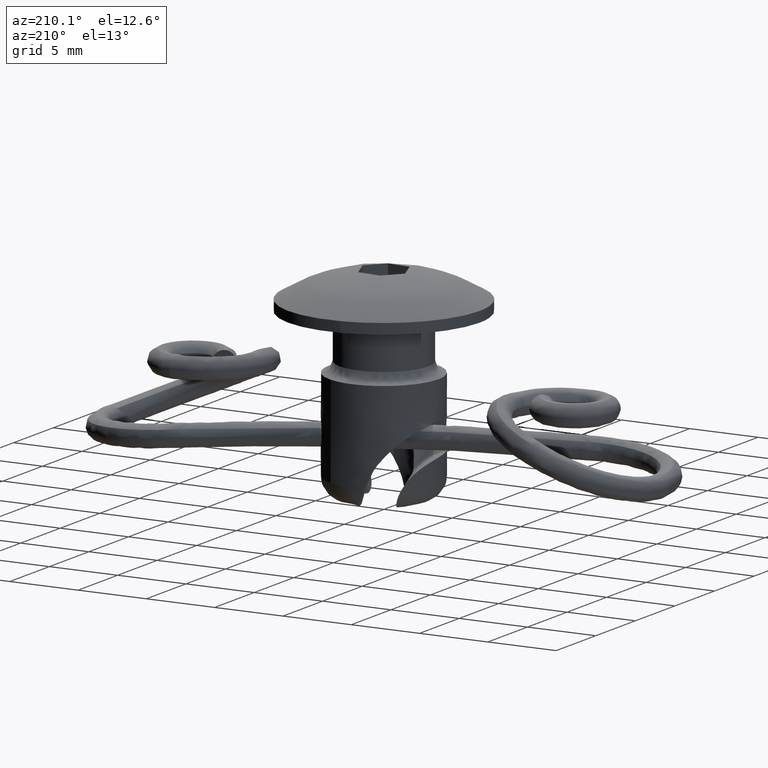
[diagram: clean part render]
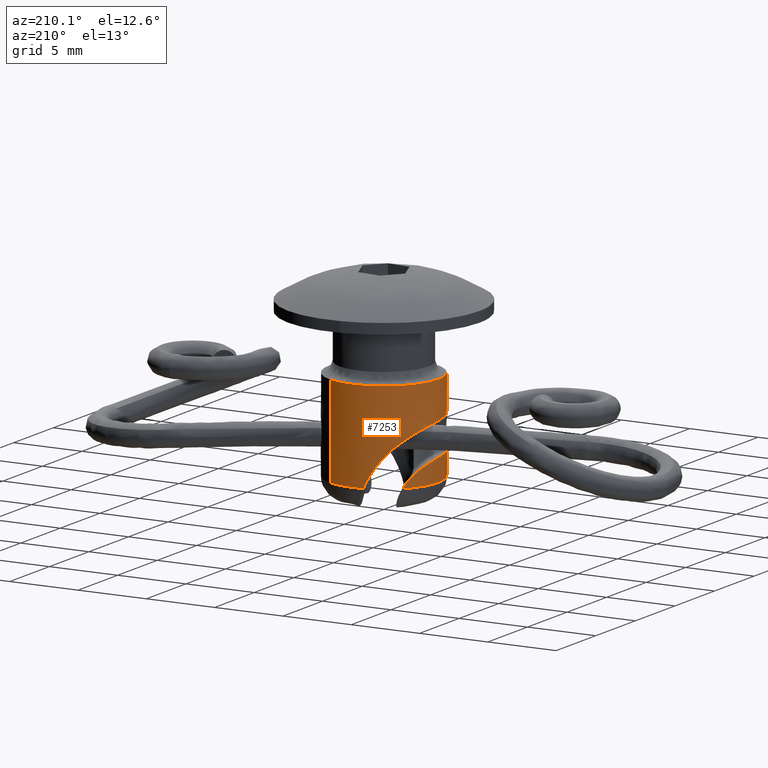
[diagram: same view with one face highlighted and labeled with its STEP entity id]
A machine part, auxiliary view. The second image highlights one B-rep face of the part: STEP entity #7253.
In plain terms, the highlighted face is a freeform B-spline surface patch.
Its self-contained STEP definition (entity closure, byte-faithful):
#7017=CARTESIAN_POINT('',(-0.474357730322942,-3.971775535043023,4.322489704469138));
#7018=CARTESIAN_POINT('',(-1.199353513371680,-3.885187722840042,4.322489704469137));
#7019=CARTESIAN_POINT('',(-1.847002193646004,-3.548041580048108,4.322489704469137));
#7020=CARTESIAN_POINT('',(-5.395043773694113,-1.701039386402105,4.322489704469137));
#7021=CARTESIAN_POINT('',(-3.548041580048108,1.847002193646004,4.322489704469137));
#7022=CARTESIAN_POINT('',(-1.701039386402105,5.395043773694113,4.322489704469137));
#7023=CARTESIAN_POINT('',(1.847002193646004,3.548041580048108,4.322489704469137));
#7024=CARTESIAN_POINT('',(-0.474357730322942,-3.971775535043023,-2.716694396108315));
#7025=CARTESIAN_POINT('',(-1.199353513371680,-3.885187722840042,-2.716694396108315));
#7026=CARTESIAN_POINT('',(-1.847002193646004,-3.548041580048108,-2.716694396108315));
#7027=CARTESIAN_POINT('',(-5.395043773694113,-1.701039386402105,-2.716694396108315));
#7028=CARTESIAN_POINT('',(-3.548041580048108,1.847002193646004,-2.716694396108315));
#7029=CARTESIAN_POINT('',(-1.701039386402105,5.395043773694113,-2.716694396108315));
#7030=CARTESIAN_POINT('',(1.847002193646004,3.548041580048108,-2.716694396108315));
#7038=(BOUNDED_SURFACE()B_SPLINE_SURFACE(2,1,((#7017,#7024),(#7018,#7025),(#7019,#7026),(#7020,#7027),(#7021,#7028),(#7022,#7029),(#7023,#7030)),.UNSPECIFIED.,.F.,.F.,.U.)B_SPLINE_SURFACE_WITH_KNOTS((3,2,2,3),(2,2),(0.0,1.590580882610453,8.218001226820670,14.845421571030890),(0.0,7.039184100577453),.UNSPECIFIED.)GEOMETRIC_REPRESENTATION_ITEM()RATIONAL_B_SPLINE_SURFACE(((0.893152553776853,0.893152553776853),(0.929705627484771,0.929705627484771),(1.0,1.0),(0.707106781186548,0.707106781186548),(1.0,1.0),(0.707106781186548,0.707106781186548),(1.0,1.0)))REPRESENTATION_ITEM('')SURFACE());
#7039=CARTESIAN_POINT('',(-0.474357731528084,-3.971775544786339,4.154989785359621));
#7040=VERTEX_POINT('',#7039);
#7041=CARTESIAN_POINT('',(-4.000002039269875,0.0,4.154989785359620));
#7042=VERTEX_POINT('',#7041);
#7043=CARTESIAN_POINT('',(-0.474357731528084,-3.971775544786339,4.154989785359621));
#7044=CARTESIAN_POINT('',(-4.000002039269875,-3.550700240300178,4.154989785359620));
#7045=CARTESIAN_POINT('',(-4.000002039269875,0.0,4.154989785359620));
#7053=(BOUNDED_CURVE()B_SPLINE_CURVE(2,(#7043,#7044,#7045),.UNSPECIFIED.,.F.,.U.)B_SPLINE_CURVE_WITH_KNOTS((3,3),(0.770532001082681,1.0),.UNSPECIFIED.)CURVE()GEOMETRIC_REPRESENTATION_ITEM()RATIONAL_B_SPLINE_CURVE((0.955841663763422,0.731161516729699,1.0))REPRESENTATION_ITEM(''));
#7054=EDGE_CURVE('',#7040,#7042,#7053,.T.);
#7055=ORIENTED_EDGE('',*,*,#7054,.T.);
#7056=CARTESIAN_POINT('',(1.846997062068040,3.548044262438284,4.154989785359583));
#7057=VERTEX_POINT('',#7056);
#7058=CARTESIAN_POINT('',(-4.000002039269875,0.0,4.154989785359620));
#7059=CARTESIAN_POINT('',(-4.000002039269875,4.000002039269875,4.154989785359619));
#7060=CARTESIAN_POINT('',(0.0,4.000002039269875,4.154989785359620));
#7061=CARTESIAN_POINT('',(0.978795270879485,4.000002039269875,4.154989785359620));
#7062=CARTESIAN_POINT('',(1.846997062068040,3.548044262438283,4.154989785359583));
#7070=(BOUNDED_CURVE()B_SPLINE_CURVE(2,(#7058,#7059,#7060,#7061,#7062),.UNSPECIFIED.,.F.,.U.)B_SPLINE_CURVE_WITH_KNOTS((3,2,3),(0.0,0.250000000000000,0.328552196913299),.UNSPECIFIED.)CURVE()GEOMETRIC_REPRESENTATION_ITEM()RATIONAL_B_SPLINE_CURVE((1.0,0.707106781186547,1.0,0.907970376804783,0.873773786274265))REPRESENTATION_ITEM(''));
#7071=EDGE_CURVE('',#7042,#7057,#7070,.T.);
#7072=ORIENTED_EDGE('',*,*,#7071,.T.);
#7073=CARTESIAN_POINT('',(1.847002771453304,3.548041270249395,-2.545006979020885));
#7074=VERTEX_POINT('',#7073);
#7075=CARTESIAN_POINT('',(1.846997062068040,3.548044262438284,4.154989785359583));
#7076=CARTESIAN_POINT('',(1.847002771453304,3.548041270249395,-2.545006979020885));
#7077=QUASI_UNIFORM_CURVE('',1,(#7075,#7076),.UNSPECIFIED.,.F.,.U.);
#7078=EDGE_CURVE('',#7057,#7074,#7077,.T.);
#7079=ORIENTED_EDGE('',*,*,#7078,.T.);
#7080=CARTESIAN_POINT('',(-0.776940158445796,3.923822135020604,-2.545006979021060));
#7081=VERTEX_POINT('',#7080);
#7082=CARTESIAN_POINT('',(-0.776940158445796,3.923822135020604,-2.545006979021060));
#7083=CARTESIAN_POINT('',(0.601014371730484,4.196665331338252,-2.545006979020949));
#7084=CARTESIAN_POINT('',(1.847002771453303,3.548041270249394,-2.545006979020885));
#7092=(BOUNDED_CURVE()B_SPLINE_CURVE(2,(#7082,#7083,#7084),.UNSPECIFIED.,.F.,.U.)B_SPLINE_CURVE_WITH_KNOTS((3,3),(0.0,0.267836110113847),.UNSPECIFIED.)CURVE()GEOMETRIC_REPRESENTATION_ITEM()RATIONAL_B_SPLINE_CURVE((1.0,0.897470111255206,0.904785048797656))REPRESENTATION_ITEM(''));
#7093=EDGE_CURVE('',#7081,#7074,#7092,.T.);
#7094=ORIENTED_EDGE('',*,*,#7093,.F.);
#7095=CARTESIAN_POINT('',(-3.708740166083640,-1.498420013741502,1.554992785359265));
#7096=VERTEX_POINT('',#7095);
#7097=CARTESIAN_POINT('',(-3.708740166083640,-1.498420013741502,1.554992785359265));
#7098=CARTESIAN_POINT('',(-3.777432133968334,-1.328400487804726,1.554992685830769));
#7099=CARTESIAN_POINT('',(-3.833669597298069,-1.155709985717574,1.551749656028139));
#7100=CARTESIAN_POINT('',(-3.922281490909786,-0.805230438074318,1.538632275593365));
#7101=CARTESIAN_POINT('',(-3.954651696555450,-0.627440381408185,1.528759125127554));
#7102=CARTESIAN_POINT('',(-3.980007781251235,-0.402010790310420,1.511439411780645));
#7103=CARTESIAN_POINT('',(-3.984320460195681,-0.356764685135137,1.507723504697201));
#7104=CARTESIAN_POINT('',(-3.991410950085425,-0.265949614836440,1.499754028675769));
#7105=CARTESIAN_POINT('',(-3.994189166865375,-0.220313866152423,1.495492969520827));
#7106=CARTESIAN_POINT('',(-4.000154990881589,-0.083980825012319,1.481954784178215));
#7107=CARTESIAN_POINT('',(-4.001008420459534,0.006435805107529,1.471901743823641));
#7108=CARTESIAN_POINT('',(-3.994505707220799,0.276251487655983,1.438355855484176));
#7109=CARTESIAN_POINT('',(-3.978119100812759,0.454224507209045,1.411507386121897));
#7110=CARTESIAN_POINT('',(-3.936022942663837,0.718104019927922,1.362755738115875));
#7111=CARTESIAN_POINT('',(-3.919062971033808,0.805548484350922,1.345084540576703));
#7112=CARTESIAN_POINT('',(-3.879284579151213,0.979343701428664,1.306507361696516));
#7113=CARTESIAN_POINT('',(-3.856367292814625,1.065955059178606,1.285519566704100));
#7114=CARTESIAN_POINT('',(-3.780090902293070,1.319916603527020,1.218160717189444));
#7115=CARTESIAN_POINT('',(-3.719036005735983,1.482594703743424,1.167189988816216));
#7116=CARTESIAN_POINT('',(-3.578783043866221,1.794889353822215,1.050974374960048));
#7117=CARTESIAN_POINT('',(-3.499573200274763,1.944502078096277,0.985732975663548));
#7118=CARTESIAN_POINT('',(-3.368388276469164,2.158934405142589,0.875175582132079));
#7119=CARTESIAN_POINT('',(-3.322823018613797,2.228342089362088,0.836389883839716));
#7120=CARTESIAN_POINT('',(-3.229277270338594,2.361869935353515,0.755555491586588));
#7121=CARTESIAN_POINT('',(-3.181168224092384,2.426202104342521,0.713399130278370));
#7122=CARTESIAN_POINT('',(-3.033378977196787,2.612224185213614,0.581537113431093));
#7123=CARTESIAN_POINT('',(-2.930246690048707,2.726951350311390,0.486442934986254));
#7124=CARTESIAN_POINT('',(-2.770557393611434,2.886117838792142,0.332249448718693));
#7125=CARTESIAN_POINT('',(-2.716324720383486,2.937162139152308,0.278753561233094));
#7126=CARTESIAN_POINT('',(-2.607384089300450,3.034285686796655,0.168681698030970));
#7127=CARTESIAN_POINT('',(-2.552751670089484,3.080320185581976,0.112190858828837));
#7128=CARTESIAN_POINT('',(-2.388784324098656,3.211435056339133,-0.061639568470517));
#7129=CARTESIAN_POINT('',(-2.279387206017946,3.289544303938469,-0.183332986501123));
#7130=CARTESIAN_POINT('',(-2.116616741856600,3.394719815616306,-0.374627924153687));
#7131=CARTESIAN_POINT('',(-2.062578430964360,3.427775364450919,-0.439853047259786));
#7132=CARTESIAN_POINT('',(-1.955161301642117,3.490160170762531,-0.573243622916523));
#7133=CARTESIAN_POINT('',(-1.901647024783677,3.519556082146015,-0.641592052394288));
#7134=CARTESIAN_POINT('',(-1.638585971377835,3.656689269542334,-0.987653874923059));
#7135=CARTESIAN_POINT('',(-1.441752941980747,3.735945503561562,-1.279084164881269));
#7136=CARTESIAN_POINT('',(-1.082037000019047,3.855533203317251,-1.890382169543479));
#7137=CARTESIAN_POINT('',(-0.919082755540878,3.895677053997866,-2.210247791275130));
#7138=CARTESIAN_POINT('',(-0.776940158445796,3.923822135020604,-2.545006979021060));
#7139=B_SPLINE_CURVE_WITH_KNOTS('',3,(#7097,#7098,#7099,#7100,#7101,#7102,#7103,#7104,#7105,#7106,#7107,#7108,#7109,#7110,#7111,#7112,#7113,#7114,#7115,#7116,#7117,#7118,#7119,#7120,#7121,#7122,#7123,#7124,#7125,#7126,#7127,#7128,#7129,#7130,#7131,#7132,#7133,#7134,#7135,#7136,#7137,#7138),.UNSPECIFIED.,.F.,.U.,(4,2,2,2,2,2,2,2,2,2,2,2,2,2,2,2,2,2,2,2,4),(0.0,0.062500000000000,0.125000000000000,0.140625000000000,0.156250000000000,0.187500000000000,0.250000000000000,0.281250000000000,0.312500000000000,0.375000000000000,0.437500000000001,0.468750000000001,0.500000000000001,0.562500000000001,0.593750000000000,0.625000000000000,0.687500000000000,0.718750000000000,0.750000000000000,0.875000000000000,1.0),.UNSPECIFIED.);
#7140=EDGE_CURVE('',#7096,#7081,#7139,.T.);
#7141=ORIENTED_EDGE('',*,*,#7140,.F.);
#7142=CARTESIAN_POINT('',(-3.708740166081765,-1.498420013739572,-0.845007214525169));
#7143=VERTEX_POINT('',#7142);
#7144=CARTESIAN_POINT('',(-3.708740166083640,-1.498420013741502,1.554992785359265));
#7145=CARTESIAN_POINT('',(-3.693984804503096,-1.534941016963140,1.554993330887688));
#7146=CARTESIAN_POINT('',(-3.678609929491738,-1.571438163734691,1.553053870595885));
#7147=CARTESIAN_POINT('',(-3.646729819276015,-1.644065248401103,1.545178879868077));
#7148=CARTESIAN_POINT('',(-3.630464258008670,-1.679654045087352,1.539307983843512));
#7149=CARTESIAN_POINT('',(-3.580789229225007,-1.784358087392446,1.516112323884118));
#7150=CARTESIAN_POINT('',(-3.546496214109941,-1.851424095958217,1.493258369891685));
#7151=CARTESIAN_POINT('',(-3.493747797753824,-1.948099096157738,1.447740386142779));
#7152=CARTESIAN_POINT('',(-3.476010681944181,-1.979540814560175,1.430714181130485));
#7153=CARTESIAN_POINT('',(-3.440971407173246,-2.039840158570223,1.393638561166636));
#7154=CARTESIAN_POINT('',(-3.406186397378758,-2.097889754040836,1.353389443201892));
#7155=CARTESIAN_POINT('',(-3.372145822644985,-2.151649813068949,1.306880743776520));
#7156=CARTESIAN_POINT('',(-3.338620239163894,-2.203310978029855,1.257187999585151));
#7157=CARTESIAN_POINT('',(-3.322040082750474,-2.228198212012645,1.230606624224770));
#7158=CARTESIAN_POINT('',(-3.274233967286107,-2.298393741265402,1.147492866256333));
#7159=CARTESIAN_POINT('',(-3.244710284792621,-2.339632263343323,1.087390363079022));
#7160=CARTESIAN_POINT('',(-3.191484927605774,-2.411731311067049,0.957755698070823));
#7161=CARTESIAN_POINT('',(-3.167663022430898,-2.442724565116205,0.887507823750955));
#7162=CARTESIAN_POINT('',(-3.129119018633881,-2.491908202948484,0.742926361299560));
#7163=CARTESIAN_POINT('',(-3.114107283982113,-2.510501039245208,0.668102184353864));
#7164=CARTESIAN_POINT('',(-3.098748930922731,-2.529394609776861,0.551902213449633));
#7165=CARTESIAN_POINT('',(-3.094827956831387,-2.534180868850462,0.512319097845532));
#7166=CARTESIAN_POINT('',(-3.089658813776049,-2.540480500395306,0.433582971252869));
#7167=CARTESIAN_POINT('',(-3.087091994981057,-2.543594090238709,0.354920570761510));
#7168=CARTESIAN_POINT('',(-3.089662003128440,-2.540476589362255,0.276402896183131));
#7169=CARTESIAN_POINT('',(-3.094805611857907,-2.534208124737608,0.197958135170047));
#7170=CARTESIAN_POINT('',(-3.098686093022836,-2.529471694640786,0.158612979945144));
#7171=CARTESIAN_POINT('',(-3.114106219269618,-2.510502780756110,0.041783713770453));
#7172=CARTESIAN_POINT('',(-3.129183437423403,-2.491827752193419,-0.033237354389448));
#7173=CARTESIAN_POINT('',(-3.158122822477121,-2.454897347929905,-0.141708599450756));
#7174=CARTESIAN_POINT('',(-3.168829011953223,-2.441088421504399,-0.177183973182796));
#7175=CARTESIAN_POINT('',(-3.192279260564290,-2.410340870327344,-0.246751455054442));
#7176=CARTESIAN_POINT('',(-3.204917461566454,-2.393537989313197,-0.280508531969016));
#7177=CARTESIAN_POINT('',(-3.244909870732671,-2.339357096838248,-0.377845756311173));
#7178=CARTESIAN_POINT('',(-3.274468797207104,-2.298059793942192,-0.437960605506411));
#7179=CARTESIAN_POINT('',(-3.322288608378297,-2.227827798676676,-0.521030348291170));
#7180=CARTESIAN_POINT('',(-3.338876229418131,-2.202923177233998,-0.547602056787546));
#7181=CARTESIAN_POINT('',(-3.372406863596471,-2.151240792318608,-0.597261592326689));
#7182=CARTESIAN_POINT('',(-3.389420252744942,-2.124363952858743,-0.620486349792075));
#7183=CARTESIAN_POINT('',(-3.440989013252115,-2.040566969036008,-0.685441653330501));
#7184=CARTESIAN_POINT('',(-3.476125544141367,-1.980401546745916,-0.722556437170883));
#7185=CARTESIAN_POINT('',(-3.546664165981126,-1.851111120038754,-0.783409390199170));
#7186=CARTESIAN_POINT('',(-3.580953215605389,-1.784019947003861,-0.806213269735668));
#7187=CARTESIAN_POINT('',(-3.630489778342497,-1.679596488171721,-0.829329341870747));
#7188=CARTESIAN_POINT('',(-3.646687078934346,-1.644154603917376,-0.835172604090788));
#7189=CARTESIAN_POINT('',(-3.678391099471917,-1.571944634068009,-0.843024308720906));
#7190=CARTESIAN_POINT('',(-3.693926957822102,-1.535084193311300,-0.845007762304333));
#7191=CARTESIAN_POINT('',(-3.708740166081765,-1.498420013739572,-0.845007214525169));
#7192=B_SPLINE_CURVE_WITH_KNOTS('',3,(#7144,#7145,#7146,#7147,#7148,#7149,#7150,#7151,#7152,#7153,#7154,#7155,#7156,#7157,#7158,#7159,#7160,#7161,#7162,#7163,#7164,#7165,#7166,#7167,#7168,#7169,#7170,#7171,#7172,#7173,#7174,#7175,#7176,#7177,#7178,#7179,#7180,#7181,#7182,#7183,#7184,#7185,#7186,#7187,#7188,#7189,#7190,#7191),.UNSPECIFIED.,.F.,.U.,(4,2,2,2,2,1,2,2,2,2,2,2,1,2,2,2,2,2,2,2,2,2,2,2,4),(0.0,0.031250000000000,0.062500000000000,0.125000000000000,0.156250000000000,0.187500000000000,0.218750000000000,0.250000000000000,0.312500000000000,0.375000000000000,0.437500000000000,0.468750000000000,0.500000000000000,0.531250000000000,0.562500000000000,0.625000000000000,0.656250000000000,0.687500000000000,0.750000000000000,0.781250000000000,0.812500000000000,0.875000000000000,0.937500000000000,0.968750000000000,1.0),.UNSPECIFIED.);
#7193=EDGE_CURVE('',#7096,#7143,#7192,.T.);
#7194=ORIENTED_EDGE('',*,*,#7193,.T.);
#7195=CARTESIAN_POINT('',(-2.927125226555355,2.726161020201685,-2.545006979020935));
#7196=VERTEX_POINT('',#7195);
#7197=CARTESIAN_POINT('',(-3.708740166081765,-1.498420013739572,-0.845007214525169));
#7198=CARTESIAN_POINT('',(-3.788486745196694,-1.301039213724274,-0.845007319817944));
#7199=CARTESIAN_POINT('',(-3.851496023237941,-1.100008815184024,-0.848903799392008));
#7200=CARTESIAN_POINT('',(-3.945444764787336,-0.691018537025187,-0.865612479615022));
#7201=CARTESIAN_POINT('',(-3.976378530829497,-0.483056499095314,-0.878405057623046));
#7202=CARTESIAN_POINT('',(-3.997964799359439,-0.165897653194431,-0.907831139973635));
#7203=CARTESIAN_POINT('',(-4.000905763823519,-0.060625093559277,-0.919263971095617));
#7204=CARTESIAN_POINT('',(-3.998618623210462,0.148227659631332,-0.945972377076260));
#7205=CARTESIAN_POINT('',(-3.993397451724661,0.251924520067197,-0.961258011111991));
#7206=CARTESIAN_POINT('',(-3.965904466796707,0.560633546980615,-1.014179732031659));
#7207=CARTESIAN_POINT('',(-3.931832126648990,0.763292663643729,-1.058738355186980));
#7208=CARTESIAN_POINT('',(-3.870294033341404,1.011661611115880,-1.132038013762459));
#7209=CARTESIAN_POINT('',(-3.857071161432902,1.060923023811438,-1.147547764828980));
#7210=CARTESIAN_POINT('',(-3.829119735583696,1.157755439362738,-1.180110122976956));
#7211=CARTESIAN_POINT('',(-3.784841271333389,1.300849189996420,-1.231380043447425));
#7212=CARTESIAN_POINT('',(-3.734006740781302,1.437464806266211,-1.290364970576193));
#7213=CARTESIAN_POINT('',(-3.661258103175109,1.613784530657286,-1.376727401607470));
#7214=CARTESIAN_POINT('',(-3.622397531003025,1.699027099797087,-1.423765374491437));
#7215=CARTESIAN_POINT('',(-3.561027394883260,1.822418791145148,-1.500835375626938));
#7216=CARTESIAN_POINT('',(-3.540057684720518,1.862803599406890,-1.527611857934175));
#7217=CARTESIAN_POINT('',(-3.497205405316877,1.942060764789427,-1.583472942002484));
#7218=CARTESIAN_POINT('',(-3.475251935646416,1.981052524187416,-1.612654684209401));
#7219=CARTESIAN_POINT('',(-3.364410791062353,2.170626543091260,-1.763450804029634));
#7220=CARTESIAN_POINT('',(-3.273135905050674,2.303987272758705,-1.898571486206239));
#7221=CARTESIAN_POINT('',(-3.139191152696660,2.480107865826624,-2.124147689721859));
#7222=CARTESIAN_POINT('',(-3.095026489555993,2.534813631747768,-2.203161399863376));
#7223=CARTESIAN_POINT('',(-3.008753080619301,2.636640669225039,-2.369141718585947));
#7224=CARTESIAN_POINT('',(-2.966904133459781,2.683449763622626,-2.455645180964997));
#7225=CARTESIAN_POINT('',(-2.927125226555355,2.726161020201685,-2.545006979020935));
#7226=B_SPLINE_CURVE_WITH_KNOTS('',3,(#7197,#7198,#7199,#7200,#7201,#7202,#7203,#7204,#7205,#7206,#7207,#7208,#7209,#7210,#7211,#7212,#7213,#7214,#7215,#7216,#7217,#7218,#7219,#7220,#7221,#7222,#7223,#7224,#7225),.UNSPECIFIED.,.F.,.U.,(4,2,2,2,2,2,2,1,2,2,2,2,2,2,4),(0.0,0.125000000000000,0.250000000000000,0.312500000000000,0.375000000000000,0.499999999999999,0.531249999999999,0.562499999999999,0.624999999999999,0.687499999999999,0.718749999999999,0.749999999999999,0.875000000000000,0.937500000000000,1.0),.UNSPECIFIED.);
#7227=EDGE_CURVE('',#7143,#7196,#7226,.T.);
#7228=ORIENTED_EDGE('',*,*,#7227,.T.);
#7229=CARTESIAN_POINT('',(-0.474353078852496,-3.971776086297433,-2.545006979020830));
#7230=VERTEX_POINT('',#7229);
#7231=CARTESIAN_POINT('',(-0.474353078852496,-3.971776086297433,-2.545006979020829));
#7232=CARTESIAN_POINT('',(-2.501192242128377,-3.729708697428128,-2.545006979020830));
#7233=CARTESIAN_POINT('',(-3.494480345920245,-1.946438571335125,-2.545006979020830));
#7234=CARTESIAN_POINT('',(-4.910781607454410,0.596275591454168,-2.545006979020831));
#7235=CARTESIAN_POINT('',(-2.927125226555355,2.726161020201685,-2.545006979020935));
#7243=(BOUNDED_CURVE()B_SPLINE_CURVE(2,(#7231,#7232,#7233,#7234,#7235),.UNSPECIFIED.,.F.,.U.)B_SPLINE_CURVE_WITH_KNOTS((3,2,3),(0.128075253260456,0.500000000000000,1.0),.UNSPECIFIED.)CURVE()GEOMETRIC_REPRESENTATION_ITEM()RATIONAL_B_SPLINE_CURVE((0.927060690470466,0.857624116149114,1.0,0.808595844859726,1.0))REPRESENTATION_ITEM(''));
#7244=EDGE_CURVE('',#7230,#7196,#7243,.T.);
#7245=ORIENTED_EDGE('',*,*,#7244,.F.);
#7246=CARTESIAN_POINT('',(-0.474357731528084,-3.971775544786339,4.154989785359621));
#7247=CARTESIAN_POINT('',(-0.474353078852496,-3.971776086297433,-2.545006979020830));
#7248=QUASI_UNIFORM_CURVE('',1,(#7246,#7247),.UNSPECIFIED.,.F.,.U.);
#7249=EDGE_CURVE('',#7040,#7230,#7248,.T.);
#7250=ORIENTED_EDGE('',*,*,#7249,.F.);
#7251=EDGE_LOOP('',(#7055,#7072,#7079,#7094,#7141,#7194,#7228,#7245,#7250));
#7252=FACE_OUTER_BOUND('',#7251,.T.);
#7253=ADVANCED_FACE('',(#7252),#7038,.T.);